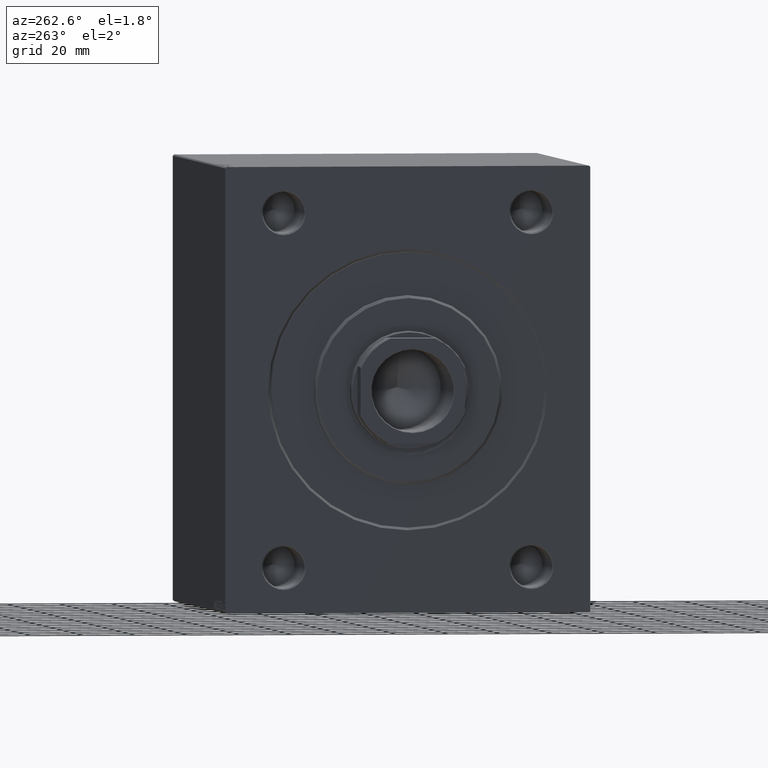
[diagram: clean part render]
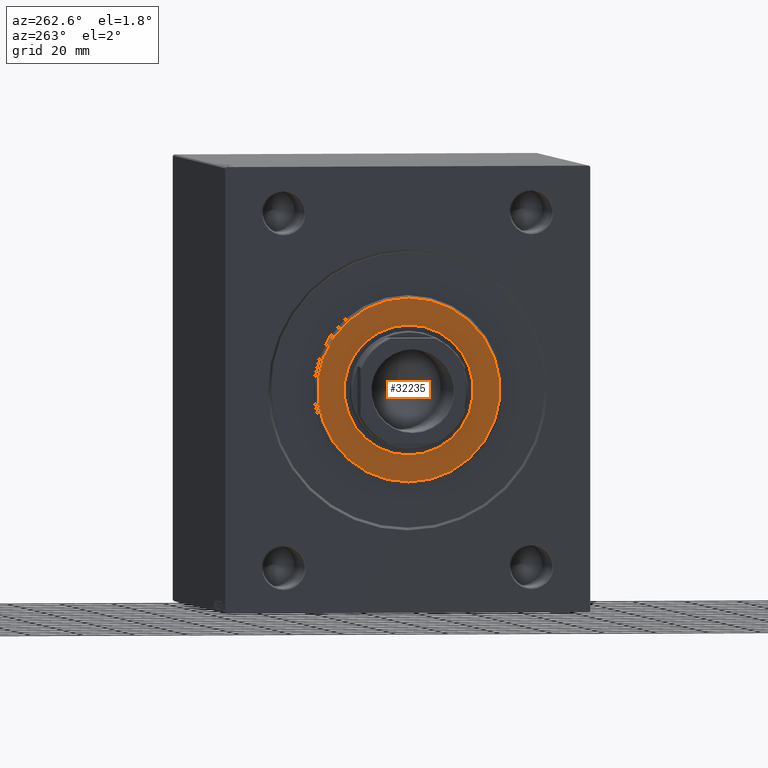
[diagram: same view with one face highlighted and labeled with its STEP entity id]
A machine part, auxiliary view. The second image highlights one B-rep face of the part: STEP entity #32235.
In plain terms, the highlighted planar face has unit normal (-1, 0, 0).
Its self-contained STEP definition (entity closure, byte-faithful):
#841 = VERTEX_POINT ( 'NONE', #18495 ) ;
#2036 = AXIS2_PLACEMENT_3D ( 'NONE', #31722, #42281, #39124 ) ;
#2248 = DIRECTION ( 'NONE',  ( 0.000000000000000000, 0.000000000000000000, -1.000000000000000000 ) ) ;
#2765 = DIRECTION ( 'NONE',  ( 0.000000000000000000, 0.000000000000000000, -1.000000000000000000 ) ) ;
#3830 = DIRECTION ( 'NONE',  ( 0.000000000000000000, 0.000000000000000000, -1.000000000000000000 ) ) ;
#4442 = EDGE_CURVE ( 'NONE', #36187, #38894, #22340, .T. ) ;
#5834 = DIRECTION ( 'NONE',  ( 0.000000000000000000, 0.000000000000000000, -1.000000000000000000 ) ) ;
#6145 = DIRECTION ( 'NONE',  ( 1.000000000000000000, -0.000000000000000000, 0.000000000000000000 ) ) ;
#9120 = AXIS2_PLACEMENT_3D ( 'NONE', #29985, #6145, #2765 ) ;
#9220 = CARTESIAN_POINT ( 'NONE',  ( 3.000000000000000000, 0.000000000000000000, 0.000000000000000000 ) ) ;
#10363 = DIRECTION ( 'NONE',  ( 1.000000000000000000, -0.000000000000000000, 0.000000000000000000 ) ) ;
#11378 = CIRCLE ( 'NONE', #24282, 35.00000000000002842 ) ;
#12045 = ORIENTED_EDGE ( 'NONE', *, *, #44112, .T. ) ;
#13268 = CARTESIAN_POINT ( 'NONE',  ( 3.000000000000000000, 0.000000000000000000, -24.75000000000000355 ) ) ;
#13502 = ORIENTED_EDGE ( 'NONE', *, *, #14244, .F. ) ;
#14244 = EDGE_CURVE ( 'NONE', #38894, #36187, #18286, .T. ) ;
#17998 = FACE_BOUND ( 'NONE', #23891, .T. ) ;
#18286 = CIRCLE ( 'NONE', #30504, 24.75000000000000355 ) ;
#18495 = CARTESIAN_POINT ( 'NONE',  ( 3.000000000000000000, 0.000000000000000000, 35.00000000000002842 ) ) ;
#22340 = CIRCLE ( 'NONE', #26642, 24.75000000000000355 ) ;
#23891 = EDGE_LOOP ( 'NONE', ( #13502, #30725 ) ) ;
#24282 = AXIS2_PLACEMENT_3D ( 'NONE', #41164, #10363, #3830 ) ;
#26532 = DIRECTION ( 'NONE',  ( 1.000000000000000000, 0.000000000000000000, 0.000000000000000000 ) ) ;
#26642 = AXIS2_PLACEMENT_3D ( 'NONE', #31939, #36866, #5834 ) ;
#28796 = PLANE ( 'NONE',  #2036 ) ;
#29256 = CIRCLE ( 'NONE', #9120, 35.00000000000002842 ) ;
#29985 = CARTESIAN_POINT ( 'NONE',  ( 3.000000000000000000, 0.000000000000000000, 0.000000000000000000 ) ) ;
#30504 = AXIS2_PLACEMENT_3D ( 'NONE', #9220, #26532, #2248 ) ;
#30601 = VERTEX_POINT ( 'NONE', #33888 ) ;
#30725 = ORIENTED_EDGE ( 'NONE', *, *, #4442, .F. ) ;
#31722 = CARTESIAN_POINT ( 'NONE',  ( 3.000000000000000000, 0.000000000000000000, 0.000000000000000000 ) ) ;
#31939 = CARTESIAN_POINT ( 'NONE',  ( 3.000000000000000000, 0.000000000000000000, 0.000000000000000000 ) ) ;
#32161 = EDGE_CURVE ( 'NONE', #841, #30601, #11378, .T. ) ;
#32235 = ADVANCED_FACE ( 'NONE', ( #38687, #17998 ), #28796, .T. ) ;
#33888 = CARTESIAN_POINT ( 'NONE',  ( 3.000000000000000000, 4.347496136973104859E-15, -35.00000000000002842 ) ) ;
#35781 = EDGE_LOOP ( 'NONE', ( #38619, #12045 ) ) ;
#36187 = VERTEX_POINT ( 'NONE', #43697 ) ;
#36866 = DIRECTION ( 'NONE',  ( 1.000000000000000000, 0.000000000000000000, 0.000000000000000000 ) ) ;
#38619 = ORIENTED_EDGE ( 'NONE', *, *, #32161, .T. ) ;
#38687 = FACE_OUTER_BOUND ( 'NONE', #35781, .T. ) ;
#38894 = VERTEX_POINT ( 'NONE', #13268 ) ;
#39124 = DIRECTION ( 'NONE',  ( 0.000000000000000000, 0.000000000000000000, -1.000000000000000000 ) ) ;
#41164 = CARTESIAN_POINT ( 'NONE',  ( 3.000000000000000000, 0.000000000000000000, 0.000000000000000000 ) ) ;
#42281 = DIRECTION ( 'NONE',  ( 1.000000000000000000, -0.000000000000000000, 0.000000000000000000 ) ) ;
#43697 = CARTESIAN_POINT ( 'NONE',  ( 3.000000000000000000, 3.031000827889699650E-15, 24.75000000000000355 ) ) ;
#44112 = EDGE_CURVE ( 'NONE', #30601, #841, #29256, .T. ) ;